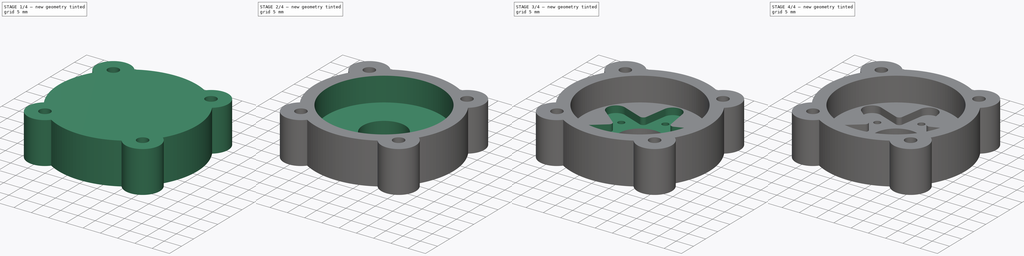
[diagram: build sequence overview — one tinted view per stage of 4, left to right]
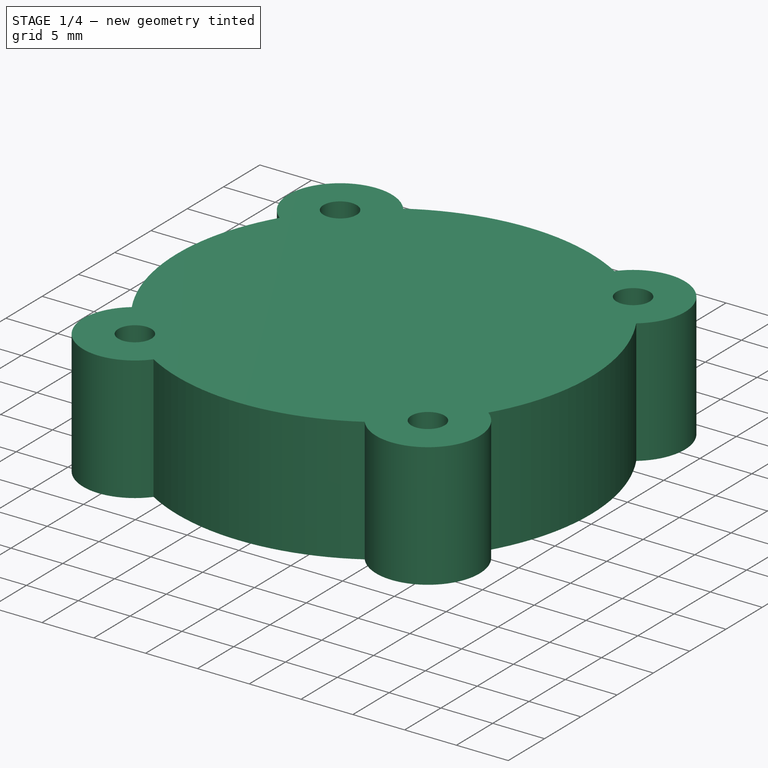
[diagram: stage 1 of 4 — iso view after this stage's code; geometry added in this stage tinted green]
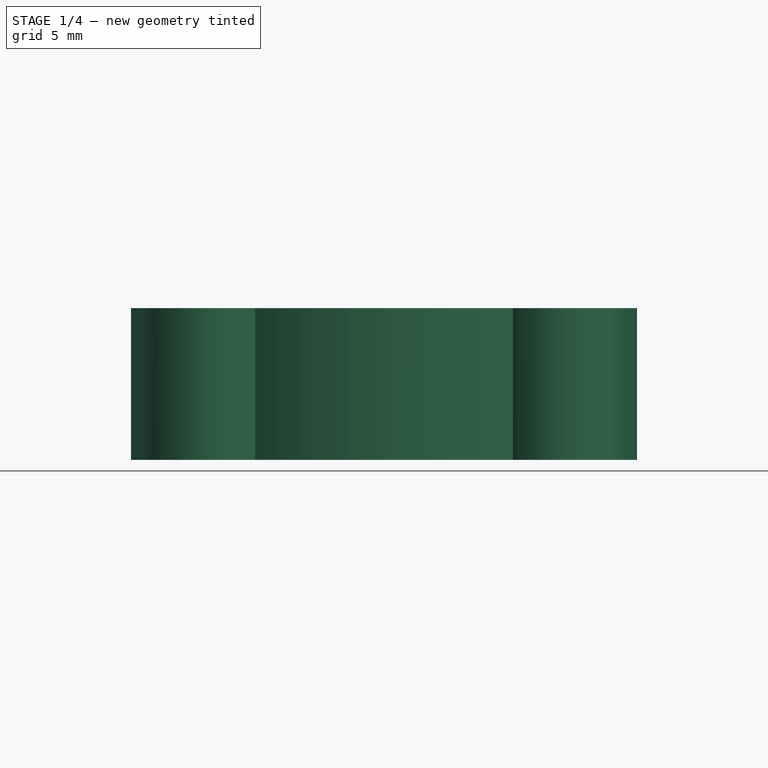
[diagram: stage 1 of 4 — front view after this stage's code; geometry added in this stage tinted green]
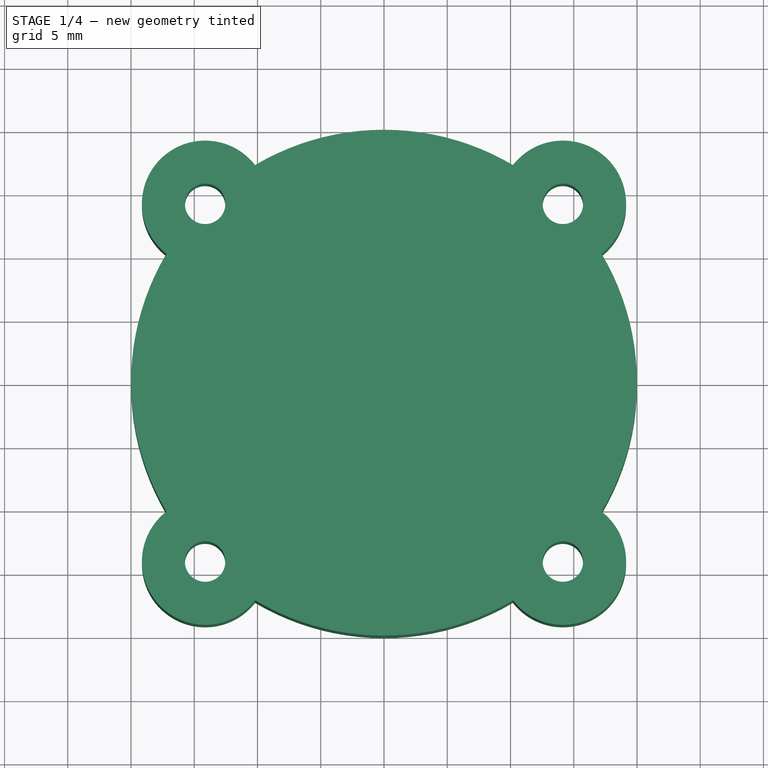
[diagram: stage 1 of 4 — top view after this stage's code; geometry added in this stage tinted green]
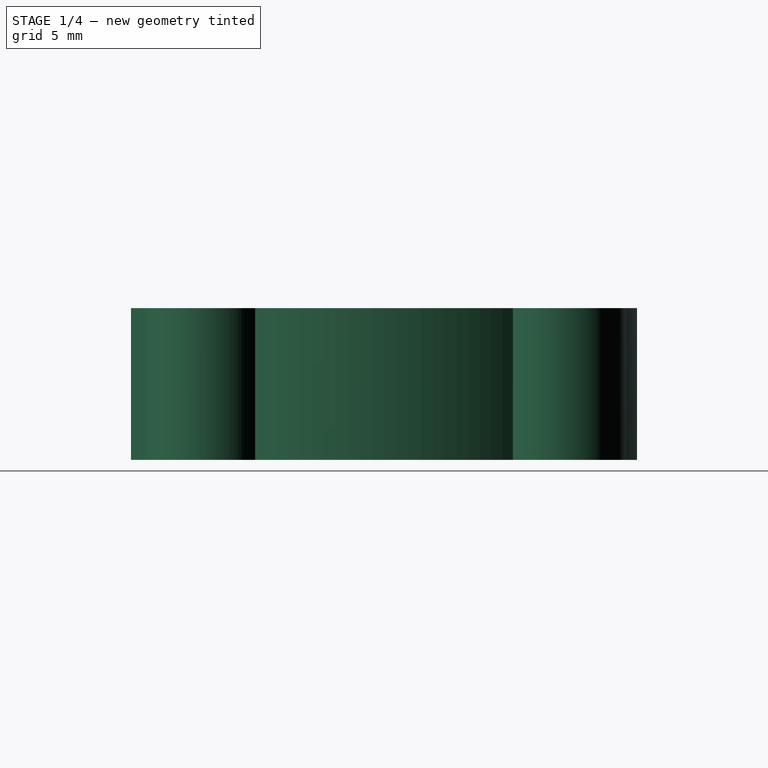
[diagram: stage 1 of 4 — right view after this stage's code; geometry added in this stage tinted green]
FCSTD DOCUMENT  (FreeCAD 0.18R4 (GitTag))
Label: Shoulder_Joint_Servohorn_Cap
License: CreativeCommons Attribution-NonCommercial
LicenseURL: http://creativecommons.org/licenses/by-nc/4.0/
objects: Sketcher::SketchObject×7, PartDesign::Pocket×6, PartDesign::Pad×1, PartDesign::Fillet×1, PartDesign::Chamfer×1, PartDesign::Body×1
note: 24 computed .brp shape members not serialized (recipe doc carries the construction recipe); baked Part::Feature solids carry a one-line shape summary decoded from their .brp

FEATURE [Sketcher::SketchObject] Sketch
  MapMode = 5
  Support = -> [XY_Plane]
  sketch-geometry (13):
    g0: Circle [constr] CenterX=0 CenterY=0 CenterZ=0 NormalX=0 NormalY=0 NormalZ=1 AngleXU=0 Radius=20
    g1: LineSegment [constr] StartX=-14.1421 StartY=14.1421 StartZ=0 EndX=14.1421 EndY=14.1421 EndZ=0
    g2: LineSegment [constr] StartX=14.1421 StartY=14.1421 StartZ=0 EndX=14.1421 EndY=-14.1421 EndZ=0
    g3: LineSegment [constr] StartX=14.1421 StartY=-14.1421 StartZ=0 EndX=-14.1421 EndY=-14.1421 EndZ=0
    g4: LineSegment [constr] StartX=-14.1421 StartY=-14.1421 StartZ=0 EndX=-14.1421 EndY=14.1421 EndZ=0
    g5: ArcOfCircle CenterX=0 CenterY=0 CenterZ=0 NormalX=0 NormalY=0 NormalZ=1 AngleXU=0 Radius=20 StartAngle=2.60685 EndAngle=3.67634
    g6: ArcOfCircle CenterX=-14.1421 CenterY=14.1421 CenterZ=0 NormalX=0 NormalY=0 NormalZ=1 AngleXU=0 Radius=5 StartAngle=0.66007 EndAngle=4.05232
    g7: ArcOfCircle CenterX=14.1421 CenterY=14.1421 CenterZ=0 NormalX=0 NormalY=0 NormalZ=1 AngleXU=0 Radius=5 StartAngle=5.37246 EndAngle=8.76471
    g8: ArcOfCircle CenterX=14.1421 CenterY=-14.1421 CenterZ=0 NormalX=0 NormalY=0 NormalZ=1 AngleXU=0 Radius=5 StartAngle=3.80166 EndAngle=7.19391
    g9: ArcOfCircle CenterX=-14.1421 CenterY=-14.1421 CenterZ=0 NormalX=0 NormalY=0 NormalZ=1 AngleXU=0 Radius=5 StartAngle=2.23087 EndAngle=5.62311
    g10: ArcOfCircle CenterX=0 CenterY=0 CenterZ=0 NormalX=0 NormalY=0 NormalZ=1 AngleXU=0 Radius=20 StartAngle=1.03605 EndAngle=2.10554
    g11: ArcOfCircle CenterX=0 CenterY=0 CenterZ=0 NormalX=0 NormalY=0 NormalZ=1 AngleXU=0 Radius=20 StartAngle=5.74844 EndAngle=6.81793
    g12: ArcOfCircle CenterX=0 CenterY=0 CenterZ=0 NormalX=0 NormalY=0 NormalZ=1 AngleXU=0 Radius=20 StartAngle=4.17765 EndAngle=5.24713
  constraints (38):
    c: Coincident(g0,g-1)
    c: Radius(g0) = 20
    c: Coincident(g1,g2)
    c: Coincident(g2,g3)
    c: Coincident(g3,g4)
    c: Coincident(g4,g1)
    c: Horizontal(g1)
    c: Horizontal(g3)
    c: Vertical(g2)
    c: Vertical(g4)
    c: PointOnObject(g1,g0)
    c: PointOnObject(g2,g0)
    c: Equal(g1,g2)
    c: PointOnObject(g1,g0)
    c: Coincident(g5,g-1)
    c: Radius(g5) = 20
    c: Coincident(g6,g1)
    c: Coincident(g7,g1)
    c: Coincident(g8,g2)
    c: Coincident(g9,g3)
    c: Coincident(g5,g6)
    c: Equal(g5,g10)
    c: Coincident(g10,g7)
    c: Coincident(g5,g10)
    c: Coincident(g11,g7)
    c: Equal(g5,g11)
    c: Coincident(g11,g8)
    c: Coincident(g5,g11)
    c: Coincident(g12,g8)
    c: Equal(g5,g12)
    c: Coincident(g12,g9)
    c: Coincident(g5,g12)
    c: Coincident(g5,g9)
    c: Coincident(g6,g10)
    c: Radius(g6) = 5
    c: Equal(g6,g7)
    c: Equal(g6,g8)
    c: Equal(g6,g9)
FEATURE [PartDesign::Pad] Pad  label="Baseplate"
  Length = 12
  Length2 = 100
  Profile = -> Sketch
  Type = 0
FEATURE [Sketcher::SketchObject] Sketch001
  MapMode = 5
  Placement = pos=(0,0,12) rot=(0,0,1;0rad)
  Support = -> [Pad]
  sketch-geometry (9):
    g0: Circle [constr] CenterX=0 CenterY=0 CenterZ=0 NormalX=0 NormalY=0 NormalZ=1 AngleXU=0 Radius=20
    g1: LineSegment [constr] StartX=-14.1421 StartY=14.1421 StartZ=0 EndX=14.1421 EndY=14.1421 EndZ=0
    g2: LineSegment [constr] StartX=14.1421 StartY=14.1421 StartZ=0 EndX=14.1421 EndY=-14.1421 EndZ=0
    g3: LineSegment [constr] StartX=14.1421 StartY=-14.1421 StartZ=0 EndX=-14.1421 EndY=-14.1421 EndZ=0
    g4: LineSegment [constr] StartX=-14.1421 StartY=-14.1421 StartZ=0 EndX=-14.1421 EndY=14.1421 EndZ=0
    g5: Circle CenterX=-14.1421 CenterY=14.1421 CenterZ=0 NormalX=0 NormalY=0 NormalZ=1 AngleXU=0 Radius=1.6
    g6: Circle CenterX=14.1421 CenterY=14.1421 CenterZ=0 NormalX=0 NormalY=0 NormalZ=1 AngleXU=0 Radius=1.6
    g7: Circle CenterX=14.1421 CenterY=-14.1421 CenterZ=0 NormalX=0 NormalY=0 NormalZ=1 AngleXU=0 Radius=1.6
    g8: Circle CenterX=-14.1421 CenterY=-14.1421 CenterZ=0 NormalX=0 NormalY=0 NormalZ=1 AngleXU=0 Radius=1.6
  constraints (22):
    c: Coincident(g0,g-1)
    c: Radius(g0) = 20
    c: Coincident(g1,g2)
    c: Coincident(g2,g3)
    c: Coincident(g3,g4)
    c: Coincident(g4,g1)
    c: Horizontal(g1)
    c: Horizontal(g3)
    c: Vertical(g2)
    c: Vertical(g4)
    c: PointOnObject(g1,g0)
    c: PointOnObject(g2,g0)
    c: PointOnObject(g1,g0)
    c: Equal(g1,g2)
    c: Coincident(g5,g1)
    c: Coincident(g6,g1)
    c: Coincident(g7,g2)
    c: Coincident(g8,g3)
    c: Equal(g8,g5)
    c: Equal(g5,g6)
    c: Equal(g6,g7)
    c: Radius(g6) = 1.6
FEATURE [PartDesign::Pocket] Pocket  label="Screwholes Mounting"
  BaseFeature = -> Pad
  Length = 12
  Length2 = 100
  Profile = -> Sketch001
  Type = 0
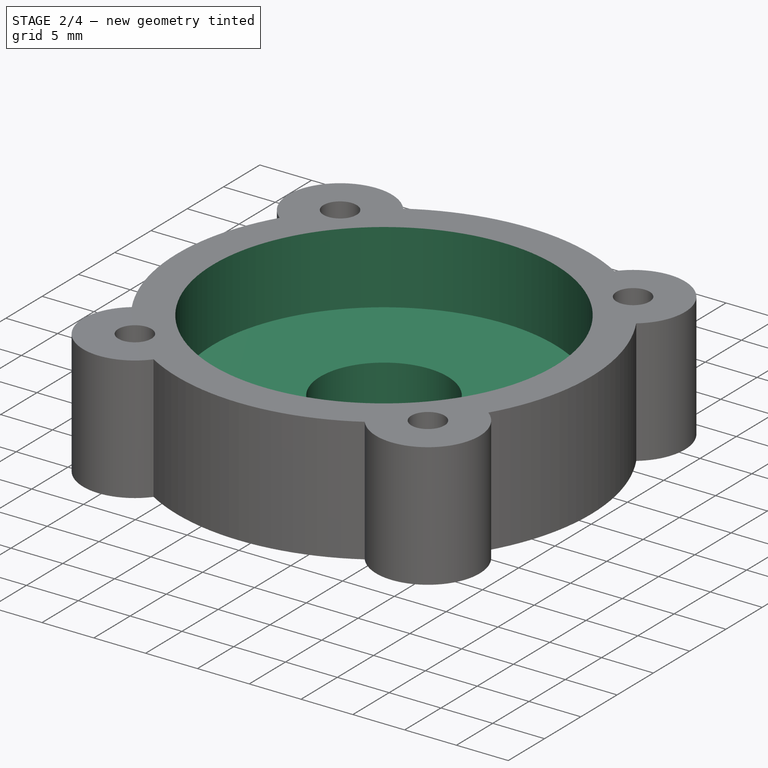
[diagram: stage 2 of 4 — iso view after this stage's code; geometry added in this stage tinted green]
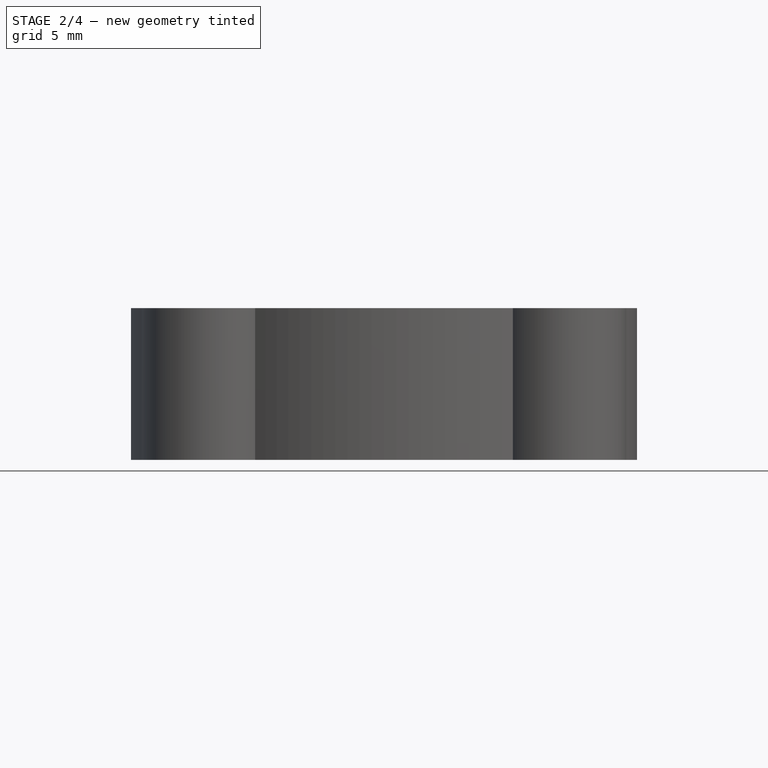
[diagram: stage 2 of 4 — front view after this stage's code; geometry added in this stage tinted green]
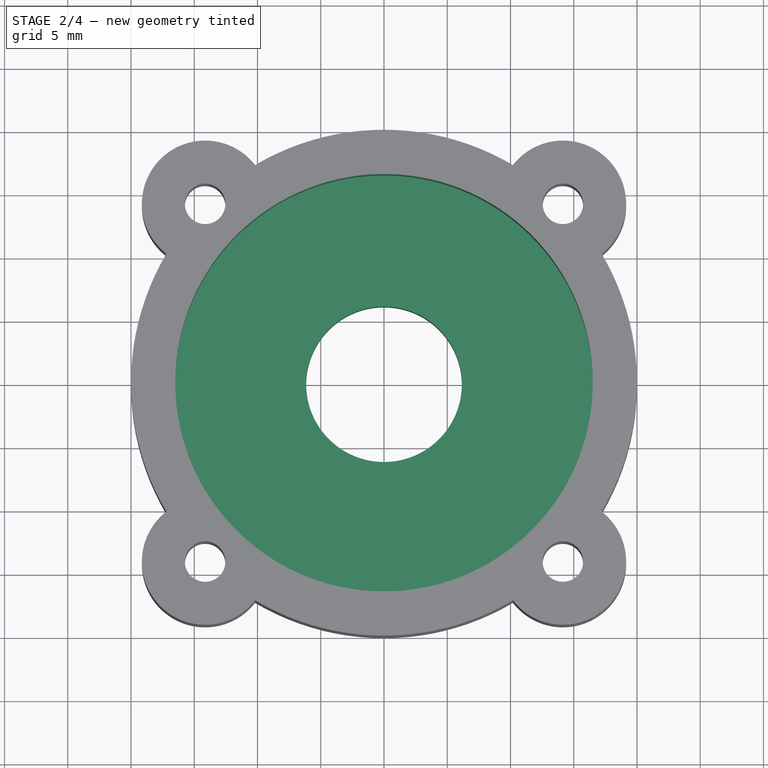
[diagram: stage 2 of 4 — top view after this stage's code; geometry added in this stage tinted green]
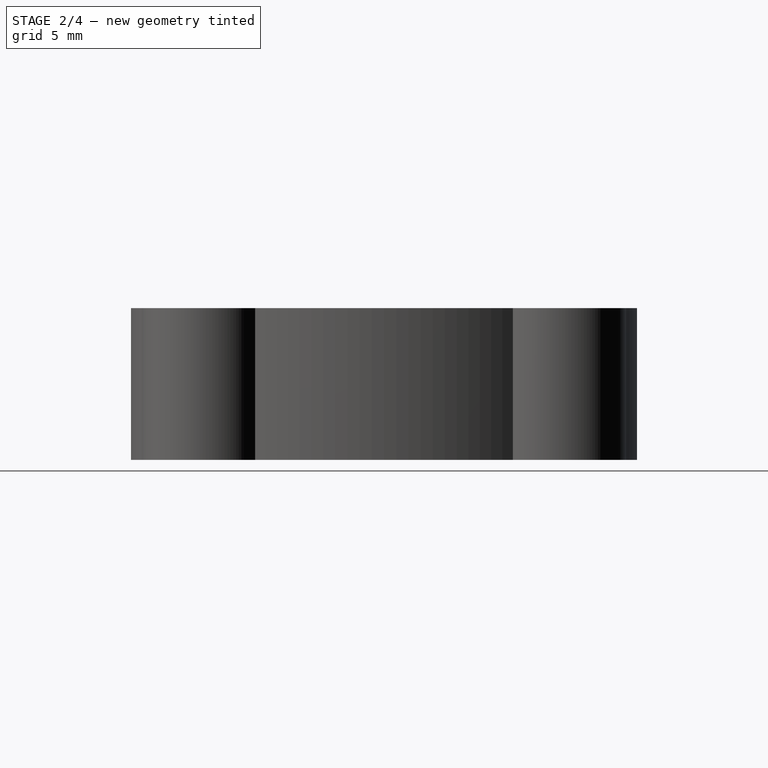
[diagram: stage 2 of 4 — right view after this stage's code; geometry added in this stage tinted green]
FEATURE [Sketcher::SketchObject] Sketch002
  MapMode = 5
  Placement = pos=(0,0,12) rot=(0,0,1;0rad)
  Support = -> [Pocket]
  sketch-geometry (1):
    g0: Circle CenterX=0 CenterY=0 CenterZ=0 NormalX=0 NormalY=0 NormalZ=1 AngleXU=0 Radius=16.5
  constraints (2):
    c: Coincident(g0,g-1)
    c: Radius(g0) = 16.5
FEATURE [PartDesign::Pocket] Pocket001  label="Accesshole"
  BaseFeature = -> Pocket
  Length = 7
  Length2 = 100
  Profile = -> Sketch002
  Type = 0
FEATURE [Sketcher::SketchObject] Sketch003
  MapMode = 5
  Placement = pos=(0,0,5) rot=(0,0,1;0rad)
  Support = -> [Pocket001]
  sketch-geometry (1):
    g0: Circle CenterX=0 CenterY=0 CenterZ=0 NormalX=0 NormalY=0 NormalZ=1 AngleXU=0 Radius=6.15
  constraints (2):
    c: Coincident(g0,g-1)
    c: Radius(g0) = 6.15
FEATURE [PartDesign::Pocket] Pocket002  label="Servohole"
  BaseFeature = -> Pocket001
  Length = 5
  Length2 = 100
  Profile = -> Sketch003
  Type = 0
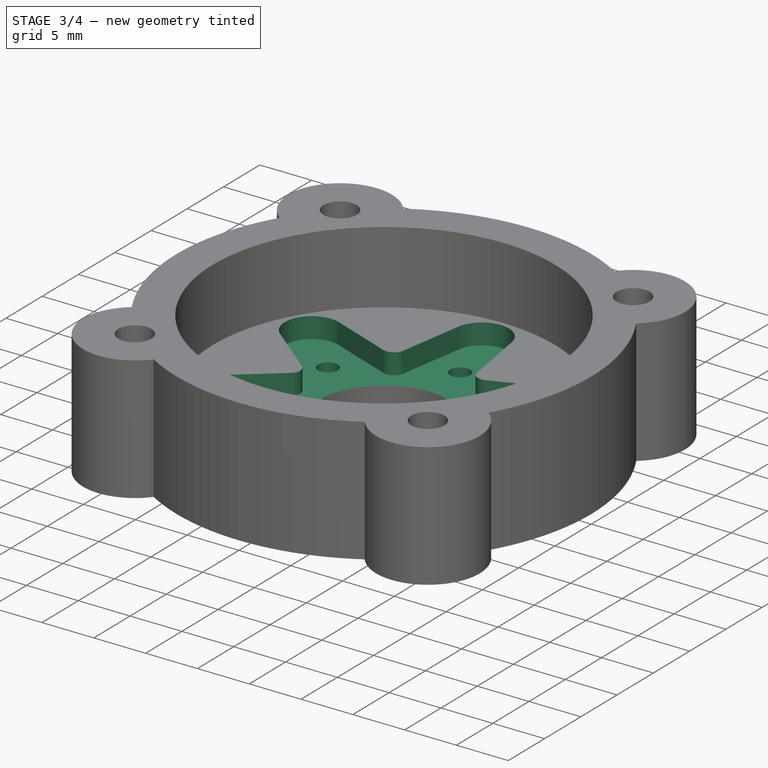
[diagram: stage 3 of 4 — iso view after this stage's code; geometry added in this stage tinted green]
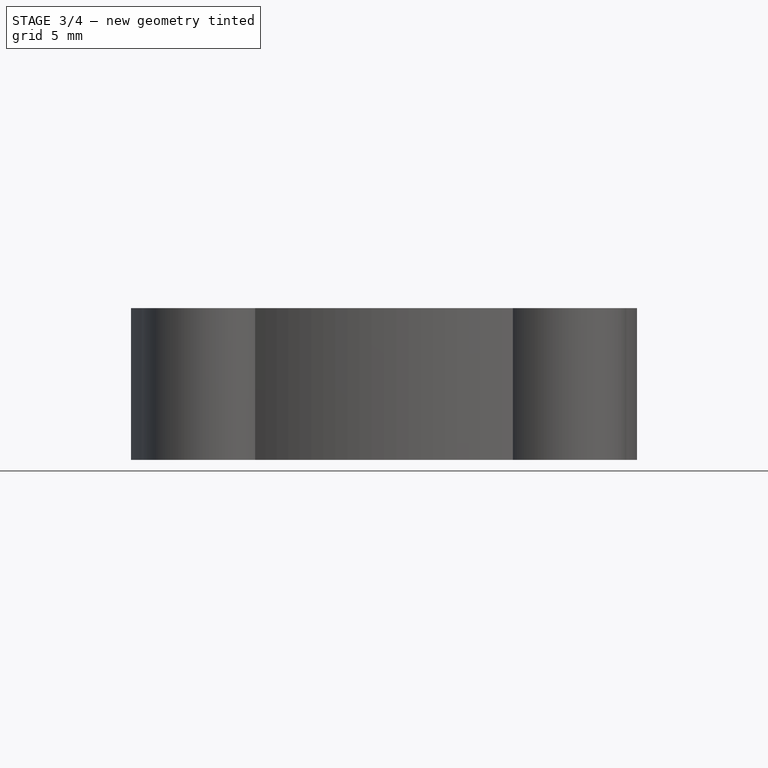
[diagram: stage 3 of 4 — front view after this stage's code; geometry added in this stage tinted green]
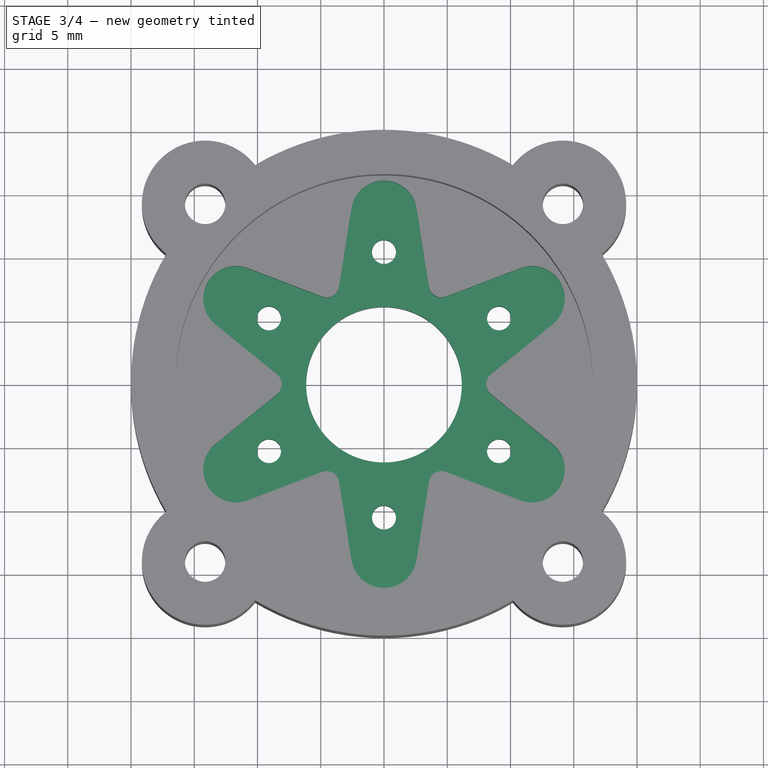
[diagram: stage 3 of 4 — top view after this stage's code; geometry added in this stage tinted green]
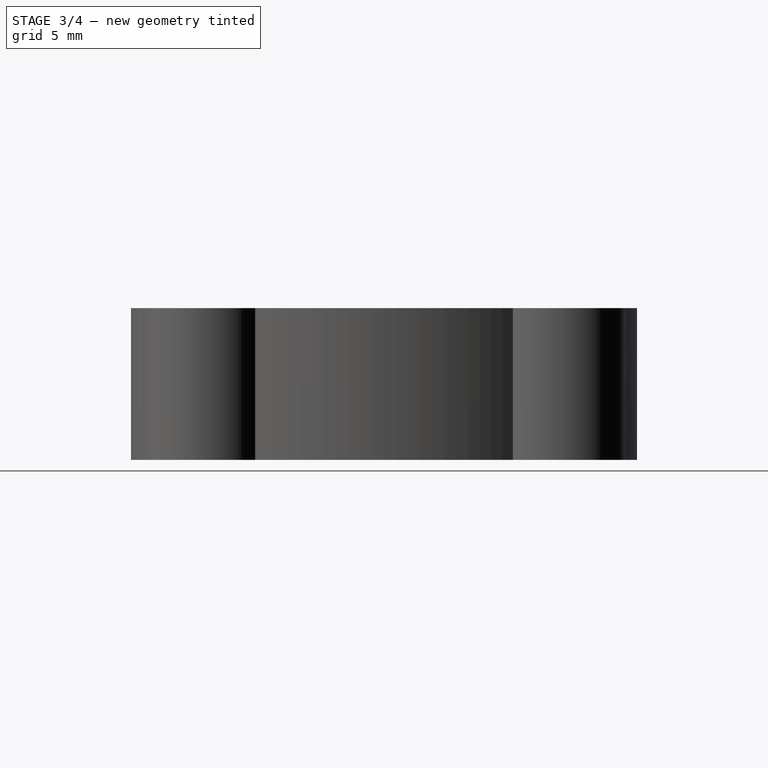
[diagram: stage 3 of 4 — right view after this stage's code; geometry added in this stage tinted green]
FEATURE [Sketcher::SketchObject] Sketch004
  MapMode = 5
  Placement = pos=(0,0,5) rot=(0,0,1;0rad)
  Support = -> [Pocket002]
  sketch-geometry (32):
    g0: LineSegment [constr] StartX=3.75 StartY=6.49519 StartZ=0 EndX=-3.75 EndY=6.49519 EndZ=0
    g1: LineSegment [constr] StartX=-3.75 StartY=6.49519 StartZ=0 EndX=-7.5 EndY=9e-16 EndZ=0
    g2: LineSegment [constr] StartX=-7.5 StartY=9e-16 StartZ=0 EndX=-3.75 EndY=-6.49519 EndZ=0
    g3: LineSegment [constr] StartX=-3.75 StartY=-6.49519 StartZ=0 EndX=3.75 EndY=-6.49519 EndZ=0
    g4: LineSegment [constr] StartX=3.75 StartY=-6.49519 StartZ=0 EndX=7.5 EndY=0 EndZ=0
    g5: LineSegment [constr] StartX=7.5 StartY=0 StartZ=0 EndX=3.75 EndY=6.49519 EndZ=0
    g6: Circle [constr] CenterX=0 CenterY=0 CenterZ=0 NormalX=0 NormalY=0 NormalZ=1 AngleXU=0 Radius=7.5
    g7: LineSegment [constr] StartX=0 StartY=13.5 StartZ=0 EndX=-11.6913 EndY=6.75 EndZ=0
    g8: LineSegment [constr] StartX=-11.6913 StartY=6.75 StartZ=0 EndX=-11.6913 EndY=-6.75 EndZ=0
    g9: LineSegment [constr] StartX=-11.6913 StartY=-6.75 StartZ=0 EndX=0 EndY=-13.5 EndZ=0
    g10: LineSegment [constr] StartX=-5e-16 StartY=-13.5 StartZ=0 EndX=11.6913 EndY=-6.75 EndZ=0
    g11: LineSegment [constr] StartX=11.6913 StartY=-6.75 StartZ=0 EndX=11.6913 EndY=6.75 EndZ=0
    g12: LineSegment [constr] StartX=11.6913 StartY=6.75 StartZ=0 EndX=0 EndY=13.5 EndZ=0
    g13: Circle [constr] CenterX=0 CenterY=0 CenterZ=0 NormalX=0 NormalY=0 NormalZ=1 AngleXU=0 Radius=13.5
    g14: ArcOfCircle CenterX=0 CenterY=13.5 CenterZ=0 NormalX=0 NormalY=0 NormalZ=1 AngleXU=0 Radius=2.6 StartAngle=0.15815 EndAngle=2.98344
    g15: ArcOfCircle CenterX=11.6913 CenterY=6.75 CenterZ=0 NormalX=0 NormalY=0 NormalZ=1 AngleXU=0 Radius=2.6 StartAngle=5.39414 EndAngle=8.21943
    g16: ArcOfCircle CenterX=11.6913 CenterY=-6.75 CenterZ=0 NormalX=0 NormalY=0 NormalZ=1 AngleXU=0 Radius=2.6 StartAngle=4.34694 EndAngle=7.17223
    g17: ArcOfCircle CenterX=-5e-16 CenterY=-13.5 CenterZ=0 NormalX=0 NormalY=0 NormalZ=1 AngleXU=0 Radius=2.6 StartAngle=3.29974 EndAngle=6.12503
    g18: ArcOfCircle CenterX=-11.6913 CenterY=-6.75 CenterZ=0 NormalX=0 NormalY=0 NormalZ=1 AngleXU=0 Radius=2.6 StartAngle=2.25255 EndAngle=5.07784
    g19: ArcOfCircle CenterX=-11.6913 CenterY=6.75 CenterZ=0 NormalX=0 NormalY=0 NormalZ=1 AngleXU=0 Radius=2.6 StartAngle=1.20535 EndAngle=4.03064
    g20: LineSegment StartX=-2.56755 StartY=13.9095 StartZ=0 EndX=-3.75 EndY=6.49519 EndZ=0
    g21: LineSegment StartX=-3.75 StartY=6.49519 StartZ=0 EndX=-10.7622 EndY=9.17831 EndZ=0
    g22: LineSegment StartX=2.56755 StartY=13.9095 StartZ=0 EndX=3.75 EndY=6.49519 EndZ=0
    g23: LineSegment StartX=3.75 StartY=6.49519 StartZ=0 EndX=10.7622 EndY=9.17831 EndZ=0
    g24: LineSegment StartX=13.3297 StartY=4.73117 StartZ=0 EndX=7.5 EndY=0 EndZ=0
    g25: LineSegment StartX=7.5 StartY=0 StartZ=0 EndX=13.3297 EndY=-4.73117 EndZ=0
    g26: LineSegment StartX=10.7622 StartY=-9.17831 StartZ=0 EndX=3.75 EndY=-6.49519 EndZ=0
    g27: LineSegment StartX=3.75 StartY=-6.49519 StartZ=0 EndX=2.56755 EndY=-13.9095 EndZ=0
    g28: LineSegment StartX=-2.56755 StartY=-13.9095 StartZ=0 EndX=-3.75 EndY=-6.49519 EndZ=0
    g29: LineSegment StartX=-3.75 StartY=-6.49519 StartZ=0 EndX=-10.7622 EndY=-9.17831 EndZ=0
    g30: LineSegment StartX=-13.3297 StartY=-4.73117 StartZ=0 EndX=-7.5 EndY=9e-16 EndZ=0
    g31: LineSegment StartX=-7.5 StartY=9e-16 StartZ=0 EndX=-13.3297 EndY=4.73117 EndZ=0
  constraints (68):
    c: Coincident(g0,g1)
    c: Coincident(g1,g2)
    c: Coincident(g2,g3)
    c: Coincident(g3,g4)
    c: Coincident(g4,g5)
    c: Coincident(g5,g0)
    c: Equal(g0, g1-g5) x5
    c: PointOnObject(g0,g6)
    c: PointOnObject(g1,g6)
    c: PointOnObject(g2,g6)
    c: PointOnObject(g3,g6)
    c: PointOnObject(g4,g6)
    c: PointOnObject(g5,g6)
    c: Coincident(g6,g-1)
    c: Coincident(g7,g8)
    c: Coincident(g8,g9)
    c: Coincident(g9,g10)
    c: Coincident(g10,g11)
    c: Coincident(g11,g12)
    c: Coincident(g12,g7)
    c: Equal(g7, g8-g12) x5
    c: PointOnObject(g7,g13)
    c: PointOnObject(g8,g13)
    c: PointOnObject(g9,g13)
    c: PointOnObject(g10,g13)
    c: PointOnObject(g11,g13)
    c: PointOnObject(g12,g13)
    c: Coincident(g13,g-1)
    c: Horizontal(g0)
    c: Vertical(g8)
    c: Radius(g6) = 7.5
    c: Radius(g13) = 13.5
    c: Coincident(g14,g7)
    c: Coincident(g15,g11)
    c: Coincident(g16,g10)
    c: Coincident(g17,g9)
    c: Coincident(g18,g8)
    c: Coincident(g19,g7)
    c: Coincident(g20,g0)
    c: Coincident(g21,g20)
    c: Coincident(g22,g0)
    c: Coincident(g23,g22)
    c: Coincident(g24,g4)
    c: Coincident(g25,g24)
    c: Coincident(g26,g3)
    c: Coincident(g27,g26)
    c: Coincident(g28,g2)
    c: Coincident(g29,g28)
    c: Coincident(g31,g30)
    c: Tangent(g21,g19) = -1.5708
    c: Tangent(g20,g14) = -1.5708
    c: Tangent(g22,g14) = 1.5708
    c: Tangent(g23,g15) = 1.5708
    c: Tangent(g24,g15) = 1.5708
    c: Tangent(g25,g16) = 1.5708
    c: Tangent(g26,g16) = 1.5708
    c: Tangent(g27,g17) = 1.5708
    c: Tangent(g28,g17) = 1.5708
    c: Tangent(g29,g18) = 1.5708
    c: Tangent(g30,g18) = 1.5708
    c: Tangent(g31,g19) = 1.5708
    c: Radius(g14) = 2.6
    c: Equal(g14,g15)
    c: Equal(g15,g16)
    c: Equal(g16,g17)
    c: Equal(g17,g18)
    c: Equal(g18,g19)
    c: Coincident(g30,g1)
FEATURE [PartDesign::Pocket] Pocket003  label="Servohorn"
  BaseFeature = -> Pocket002
  Length = 2
  Length2 = 100
  Profile = -> Sketch004
  Type = 0
FEATURE [PartDesign::Fillet] Fillet  label="Smooth Servohorn Corners"
  Base = -> Pocket003 [Edge81,Edge87,Edge82,Edge88,Edge93,Edge94]
  BaseFeature = -> Pocket003
  Radius = 1
FEATURE [Sketcher::SketchObject] Sketch005
  MapMode = 5
  Placement = pos=(0,0,3) rot=(0,0,1;0rad)
  Support = -> [Fillet]
  sketch-geometry (13):
    g0: LineSegment [constr] StartX=0 StartY=10.5 StartZ=0 EndX=-9.09327 EndY=5.25 EndZ=0
    g1: LineSegment [constr] StartX=-9.09327 StartY=5.25 StartZ=0 EndX=-9.09327 EndY=-5.25 EndZ=0
    g2: LineSegment [constr] StartX=-9.09327 StartY=-5.25 StartZ=0 EndX=0 EndY=-10.5 EndZ=0
    g3: LineSegment [constr] StartX=0 StartY=-10.5 StartZ=0 EndX=9.09327 EndY=-5.25 EndZ=0
    g4: LineSegment [constr] StartX=9.09327 StartY=-5.25 StartZ=0 EndX=9.09327 EndY=5.25 EndZ=0
    g5: LineSegment [constr] StartX=9.09327 StartY=5.25 StartZ=0 EndX=0 EndY=10.5 EndZ=0
    g6: Circle [constr] CenterX=0 CenterY=0 CenterZ=0 NormalX=0 NormalY=0 NormalZ=1 AngleXU=0 Radius=10.5
    g7: Circle CenterX=0 CenterY=10.5 CenterZ=0 NormalX=0 NormalY=0 NormalZ=1 AngleXU=0 Radius=0.95
    g8: Circle CenterX=9.09327 CenterY=5.25 CenterZ=0 NormalX=0 NormalY=0 NormalZ=1 AngleXU=0 Radius=0.95
    g9: Circle CenterX=9.09327 CenterY=-5.25 CenterZ=0 NormalX=0 NormalY=0 NormalZ=1 AngleXU=0 Radius=0.95
    g10: Circle CenterX=0 CenterY=-10.5 CenterZ=0 NormalX=0 NormalY=0 NormalZ=1 AngleXU=0 Radius=0.95
    g11: Circle CenterX=-9.09327 CenterY=-5.25 CenterZ=0 NormalX=0 NormalY=0 NormalZ=1 AngleXU=0 Radius=0.95
    g12: Circle CenterX=-9.09327 CenterY=5.25 CenterZ=0 NormalX=0 NormalY=0 NormalZ=1 AngleXU=0 Radius=0.95
  constraints (24):
    c: Coincident(g0,g1)
    c: Coincident(g1,g2)
    c: Coincident(g2,g3)
    c: Coincident(g3,g4)
    c: Coincident(g4,g5)
    c: Coincident(g5,g0)
    c: Equal(g0, g1-g5) x5
    c: PointOnObject(g0,g6)
    c: PointOnObject(g1,g6)
    c: PointOnObject(g2,g6)
    c: PointOnObject(g3,g6)
    c: PointOnObject(g4,g6)
    c: PointOnObject(g5,g6)
    c: Coincident(g6,g-1)
    c: PointOnObject(g5,g-2)
    c: Radius(g6) = 10.5
    c: Coincident(g7,g0)
    c: Coincident(g8,g4)
    c: Coincident(g9,g3)
    c: Coincident(g10,g2)
    c: Coincident(g11,g1)
    c: Coincident(g12,g0)
    c: Radius(g12) = 0.95
    c: Equal(g12, g7-g11) x5
FEATURE [PartDesign::Pocket] Pocket004  label="Screwholes Servohorn"
  BaseFeature = -> Fillet
  Length = 3
  Length2 = 100
  Profile = -> Sketch005
  Type = 0
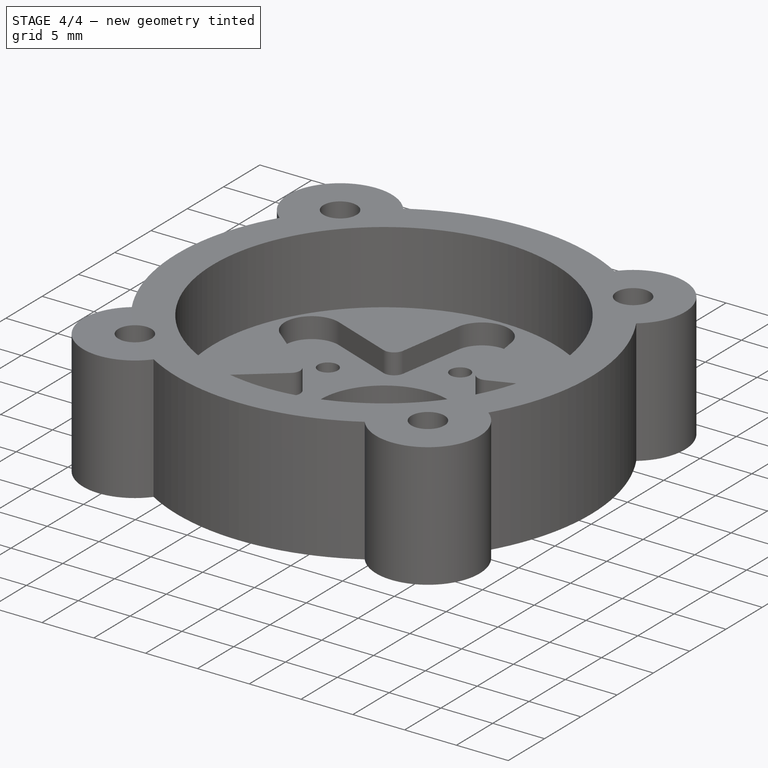
[diagram: stage 4 of 4 — iso view after this stage's code; geometry added in this stage tinted green]
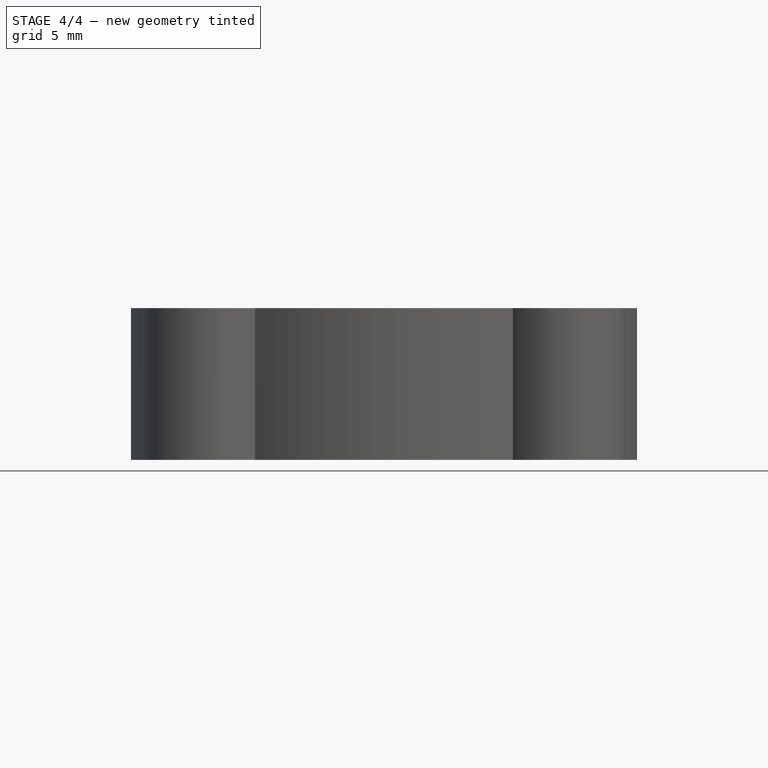
[diagram: stage 4 of 4 — front view after this stage's code; geometry added in this stage tinted green]
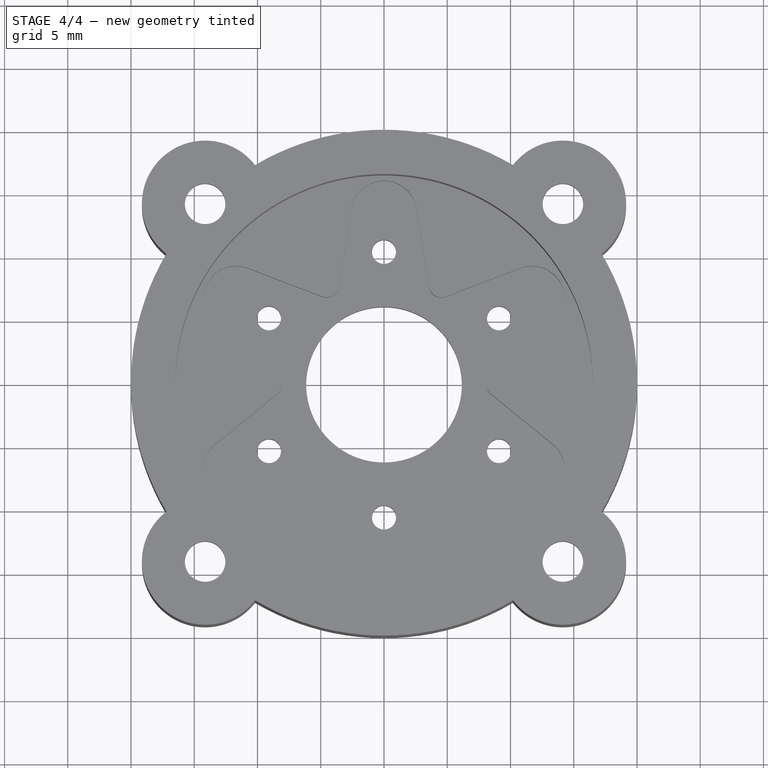
[diagram: stage 4 of 4 — top view after this stage's code; geometry added in this stage tinted green]
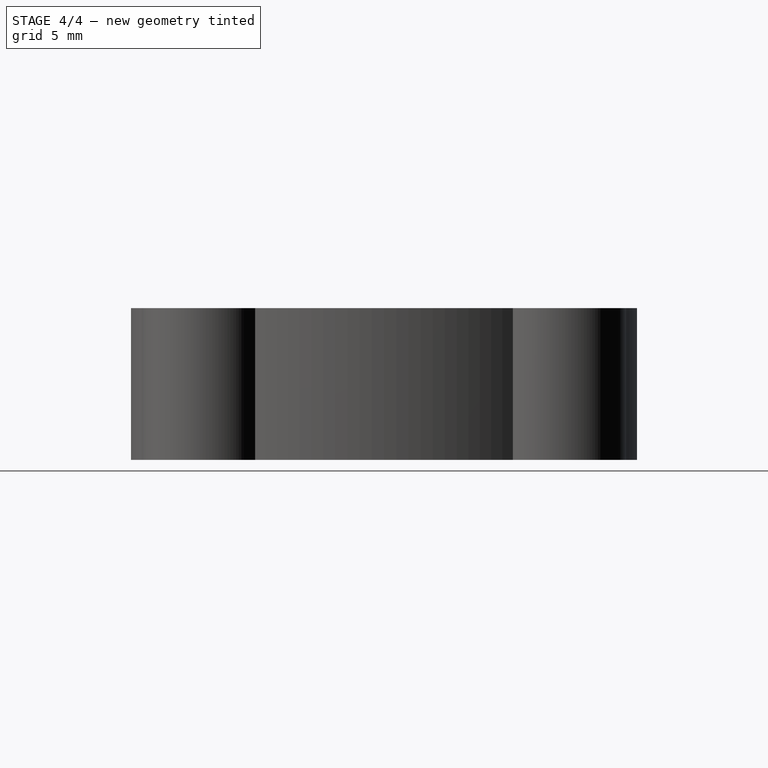
[diagram: stage 4 of 4 — right view after this stage's code; geometry added in this stage tinted green]
FEATURE [Sketcher::SketchObject] Sketch006
  MapMode = 5
  Placement = pos=(0,0,0) rot=(1,0,0;3.14159rad)
  Support = -> [Pocket004]
  sketch-geometry (10):
    g0: Circle [constr] CenterX=0 CenterY=0 CenterZ=0 NormalX=0 NormalY=0 NormalZ=1 AngleXU=0 Radius=20
    g1: LineSegment [constr] StartX=-14.1421 StartY=14.1421 StartZ=0 EndX=14.1421 EndY=14.1421 EndZ=0
    g2: LineSegment [constr] StartX=14.1421 StartY=14.1421 StartZ=0 EndX=14.1421 EndY=-14.1421 EndZ=0
    g3: LineSegment [constr] StartX=14.1421 StartY=-14.1421 StartZ=0 EndX=-14.1421 EndY=-14.1421 EndZ=0
    g4: LineSegment [constr] StartX=-14.1421 StartY=-14.1421 StartZ=0 EndX=-14.1421 EndY=14.1421 EndZ=0
    g5: Circle CenterX=-14.1421 CenterY=14.1421 CenterZ=0 NormalX=0 NormalY=0 NormalZ=1 AngleXU=0 Radius=1.2e-15
    g6: Circle CenterX=14.1421 CenterY=14.1421 CenterZ=0 NormalX=0 NormalY=0 NormalZ=1 AngleXU=0 Radius=2.85
    g7: Circle CenterX=14.1421 CenterY=-14.1421 CenterZ=0 NormalX=0 NormalY=0 NormalZ=1 AngleXU=0 Radius=2.85
    g8: Circle CenterX=-14.1421 CenterY=14.1421 CenterZ=0 NormalX=0 NormalY=0 NormalZ=1 AngleXU=0 Radius=2.85
    g9: Circle CenterX=-14.1421 CenterY=-14.1421 CenterZ=0 NormalX=0 NormalY=0 NormalZ=1 AngleXU=0 Radius=2.85
  constraints (24):
    c: Coincident(g0,g-1)
    c: Radius(g0) = 20
    c: Coincident(g1,g2)
    c: Coincident(g2,g3)
    c: Coincident(g3,g4)
    c: Coincident(g4,g1)
    c: Horizontal(g1)
    c: Horizontal(g3)
    c: Vertical(g2)
    c: Vertical(g4)
    c: PointOnObject(g1,g0)
    c: PointOnObject(g2,g0)
    c: PointOnObject(g1,g0)
    c: Equal(g1,g2)
    c: Coincident(g5,g1)
    c: Tangent(g5,g0)
    c: Coincident(g6,g1)
    c: Coincident(g7,g2)
    c: Coincident(g8,g5)
    c: Coincident(g9,g3)
    c: Equal(g9,g8)
    c: Equal(g8,g6)
    c: Equal(g6,g7)
    c: Radius(g6) = 2.85
FEATURE [PartDesign::Pocket] Pocket005  label="Screwheads Mounting"
  BaseFeature = -> Pocket004
  Length = 8
  Length2 = 100
  Profile = -> Sketch006
  Type = 0
FEATURE [PartDesign::Chamfer] Chamfer  label="Screwheads Bottom Chamfer"
  Base = -> Pocket005 [Edge140,Edge139,Edge138,Edge137]
  BaseFeature = -> Pocket005
  Size = 1.2
FEATURE [PartDesign::Body] Body  label="Shoulder_Joint_Servohorn_Cap"
  Group = -> [Sketch,Pad,Sketch001,Pocket,Sketch002,Pocket001,Sketch003,Pocket002,Sketch004,Pocket003,Fillet,Sketch005,Pocket004,Sketch006,Pocket005,Chamfer]
  Origin = -> Origin
  Tip = -> Chamfer
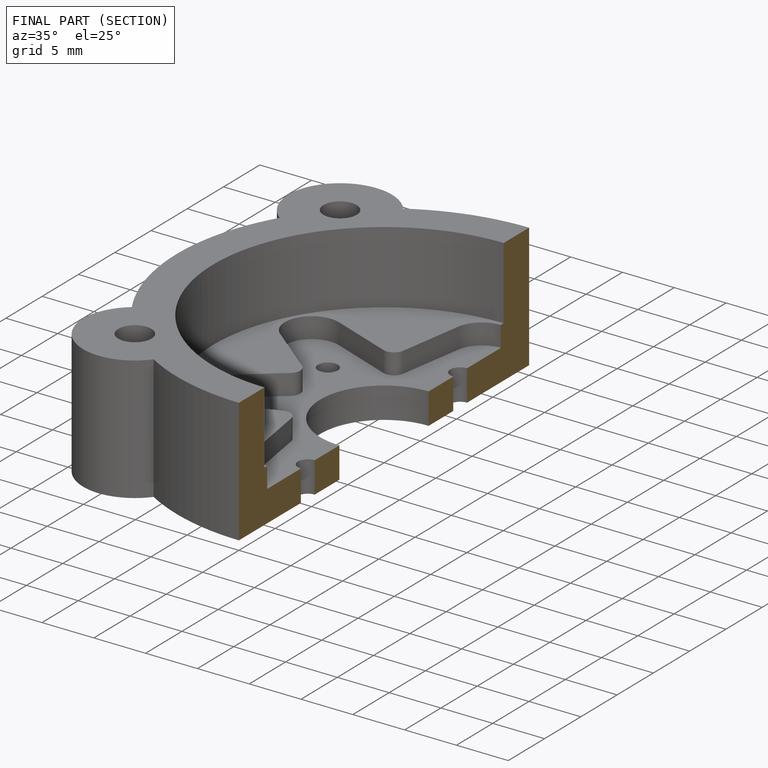
[diagram: finished part — half-section view (interior)]
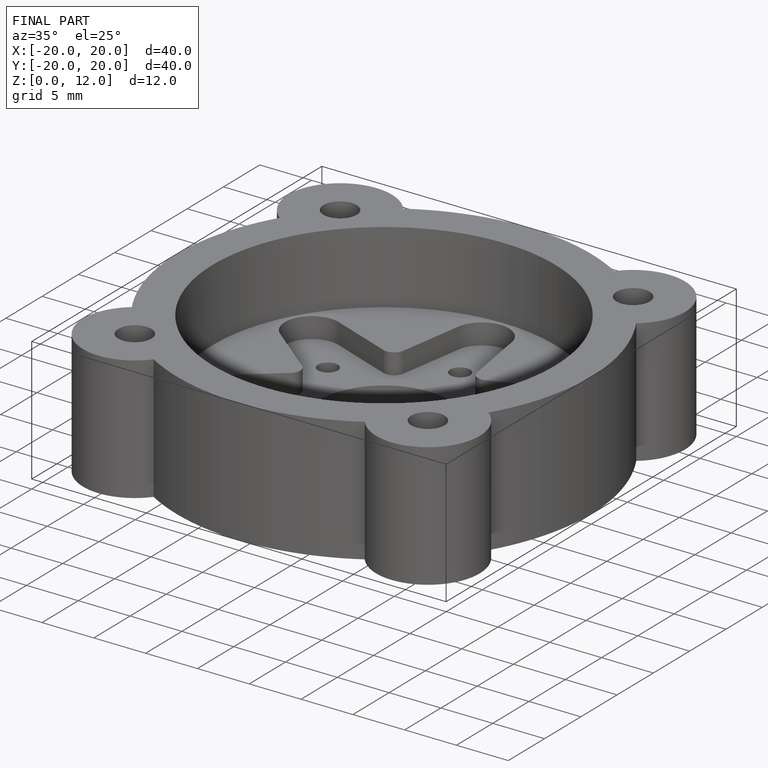
[diagram: finished part — iso view with bounding-box wireframe]
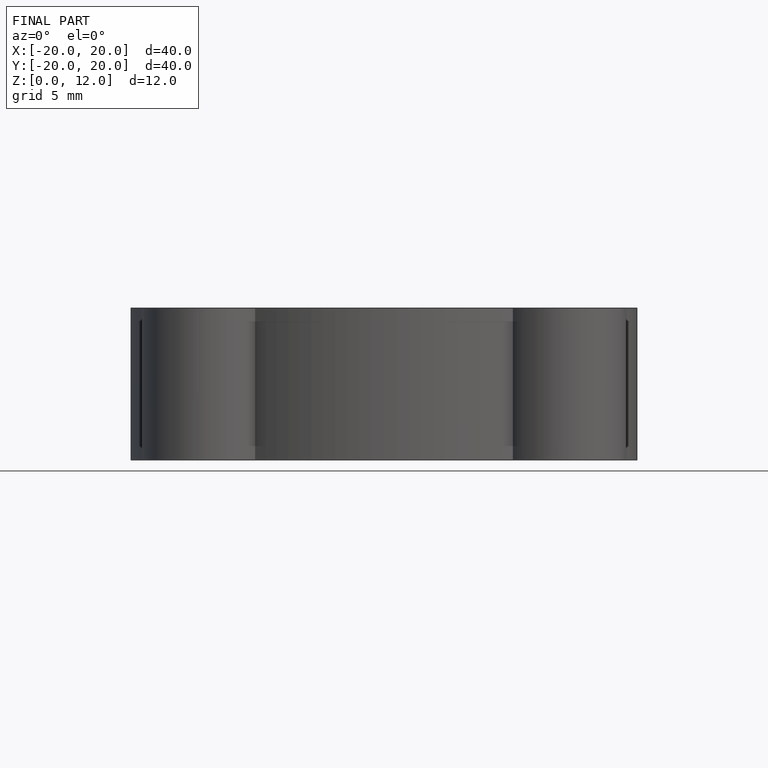
[diagram: finished part — front view with bounding-box wireframe]
